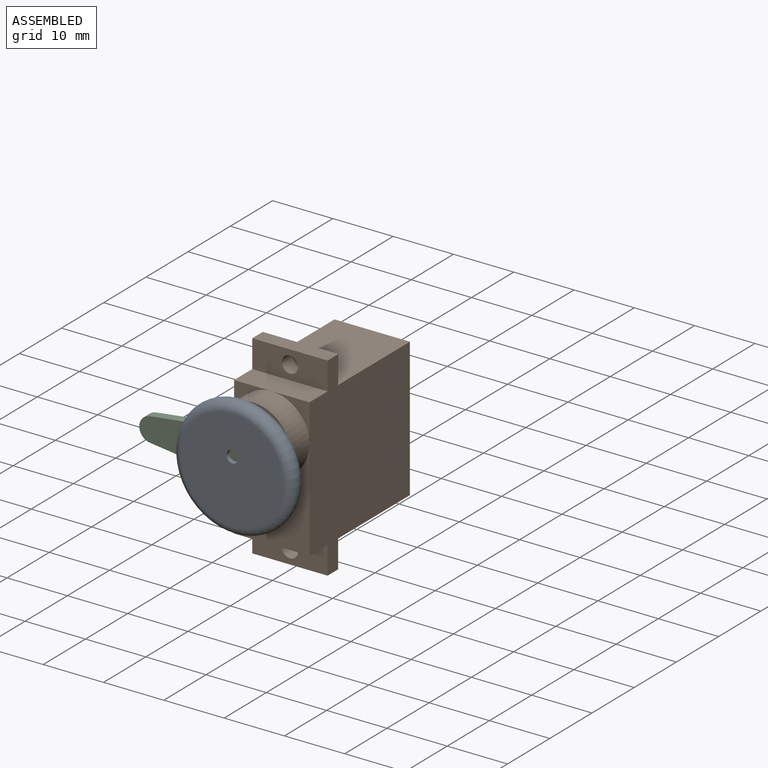
[diagram: assembled view]
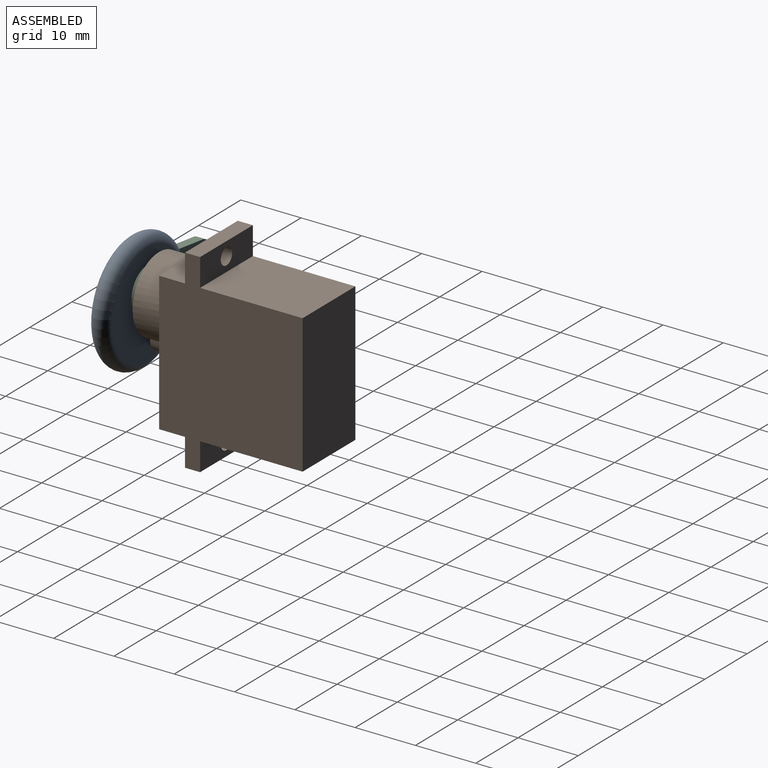
[diagram: assembled view, second angle]
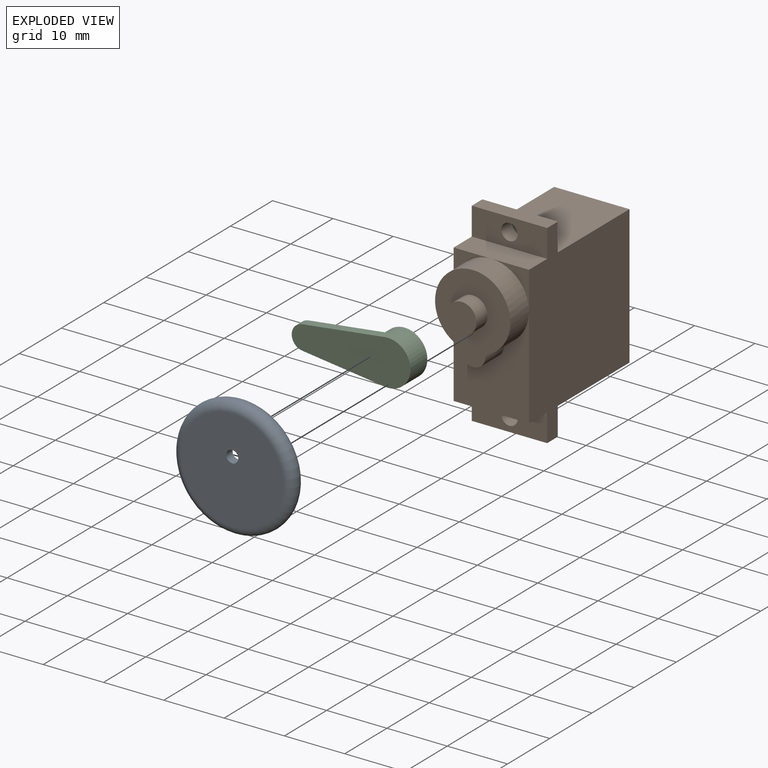
[diagram: exploded view]
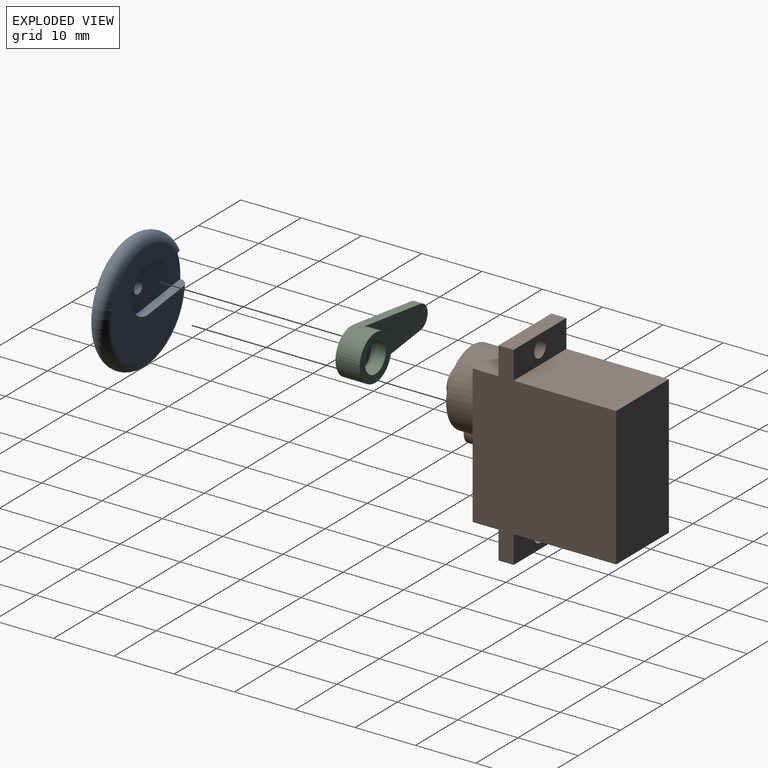
[diagram: exploded view, second angle]
ASSEMBLY  parts=3 mates=2
PART A: 8 faces, bbox 21.6x3x21.6 mm
  f0: cylinder r=1mm len=2mm, axis (0,-1,0), area 9.4mm2, adj f3,f5
  f1: plane 17x16.97mm, normal (0,1,0), area 152.1mm2, adj f2,f4,f6,f7
  f2: torus R=8.5mm, axis (0,-1,0), area 266.8mm2, adj f1,f3,f5,f6,f7
  f3: plane 17x17mm, normal (0,-1,0), area 223.8mm2, adj f0,f2
  f4: cylinder r=3.75mm len=7.5mm, axis (0,-1,0), area 19.1mm2, adj f1,f5,f6,f7
  f5: plane 13.75x7.5mm, normal (0,1,0), area 80.2mm2, adj f0,f2,f4,f6,f7
  f6: plane 9.52x1.5mm, normal (0.13,0,0.99), area 13.9mm2, adj f1,f2,f4,f5
  f7: plane 8.38x1.5mm, normal (0.13,0,-0.99), area 12.1mm2, adj f1,f2,f4,f5
PART B: 23 faces, bbox 12.5x32.3x30.8 mm
  f0: plane 6.25x6.25mm, normal (0,0,1), area 8.4mm2, adj f5,f16,f18
  f1: plane 6.25x6.25mm, normal (0,0,1), area 8.4mm2, adj f3,f16,f18
  f2: plane 12.5x4.63mm, normal (0,0,1), area 52.1mm2, adj f3,f5,f9,f11,f16
  f3: plane 32.25x23.8mm, normal (1,0,0), area 570.5mm2, adj f1,f2,f4,f6,f7,f8,f9,f10
  f4: plane 17x12.5mm, normal (0,1,0), area 212.5mm2, adj f3,f5,f7,f8
  f5: plane 32.25x23.8mm, normal (-1,0,0), area 570.5mm2, adj f0,f2,f4,f6,f7,f8,f9,f10
  f6: plane 17x12.5mm, normal (0,-1,0), area 212.5mm2, adj f3,f5,f7,f14
  f7: plane 23x12.5mm, normal (0,0,-1), area 287.5mm2, adj f3,f4,f5,f6
  f8: plane 12.5x4.63mm, normal (0,0,-1), area 52.1mm2, adj f3,f4,f5,f9,f11
  f9: plane 12.5x2.5mm, normal (0,1,0), area 31.2mm2, adj f2,f3,f5,f8
  f10: plane 12.5x2.5mm, normal (0,-1,0), area 31.2mm2, adj f3,f5,f13,f14
  f11: cylinder r=1.35mm len=2.7mm, axis (0,0,-1), area 21.2mm2, adj f2,f8
  f12: cylinder r=1.35mm len=2.7mm, axis (0,0,-1), area 21.2mm2, adj f13,f14
  f13: plane 12.5x4.63mm, normal (0,0,1), area 52.1mm2, adj f3,f5,f10,f12,f15
  f14: plane 12.5x4.63mm, normal (0,0,-1), area 52.1mm2, adj f3,f5,f6,f10,f12
  f15: plane 12.5x4.3mm, normal (0,-1,0), area 53.8mm2, adj f3,f5,f13,f17
  f16: plane 12.5x4.3mm, normal (0,1,0), area 53.8mm2, adj f0,f1,f2,f3,f5
  f17: plane 16.75x12.5mm, normal (0,0,1), area 140.6mm2, adj f3,f5,f15,f18,f19
  f18: cylinder r=6.25mm len=12.5mm, axis (0,0,-1), area 154.2mm2, adj f0,f1,f17,f19,f20
  f19: cylinder r=2.1mm len=4.4mm, axis (0,0,-1), area 32.1mm2, adj f17,f18,f20
  f20: plane 14.6x12.5mm, normal (0,0,1), area 111.3mm2, adj f18,f19,f21
  f21: cylinder r=2.45mm len=4.9mm, axis (0,0,-1), area 40mm2, adj f20,f22
  f22: plane 4.9x4.9mm, normal (0,0,1), area 18.9mm2, adj f21
PART C: 9 faces, bbox 19.7x7.5x4 mm
  f0: cylinder r=3.75mm len=7.5mm, axis (0,0,1), area 78mm2, adj f1,f2,f3,f5,f6
  f1: plane 7.5x7.5mm, normal (0,0,-1), area 25.3mm2, adj f0,f7
  f2: plane 19.7x7.5mm, normal (0,0,1), area 109.2mm2, adj f0,f3,f4,f5
  f3: plane 13.73x1.74mm, normal (-0.13,-0.99,0), area 20.8mm2, adj f0,f2,f4,f6
  f4: cylinder r=2mm len=3.97mm, axis (0,0,1), area 8.7mm2, adj f2,f3,f5,f6
  f5: plane 13.73x1.74mm, normal (-0.13,0.99,0), area 20.8mm2, adj f0,f2,f4,f6
  f6: plane 15.48x7.44mm, normal (0,0,-1), area 65mm2, adj f0,f3,f4,f5
  f7: cylinder r=2.45mm len=4.9mm, axis (0,0,-1), area 36.9mm2, adj f1,f8
  f8: plane 4.9x4.9mm, normal (0,0,-1), area 18.9mm2, adj f7
PLACE A at identity fixed
PLACE B rot(axis=(1,0,0),90deg) t=(0,33.65,24)mm
PLACE C rot(axis=(1,0,0),90deg) t=(0,33.65,24)mm
MATE fastened A.f0 <-> C.f0  axis (0,-1,0) through (0,1.25,24)mm
MATE fastened B.f21 <-> C.f7  axis (0,-1,0) through (0,2.85,24)mm
